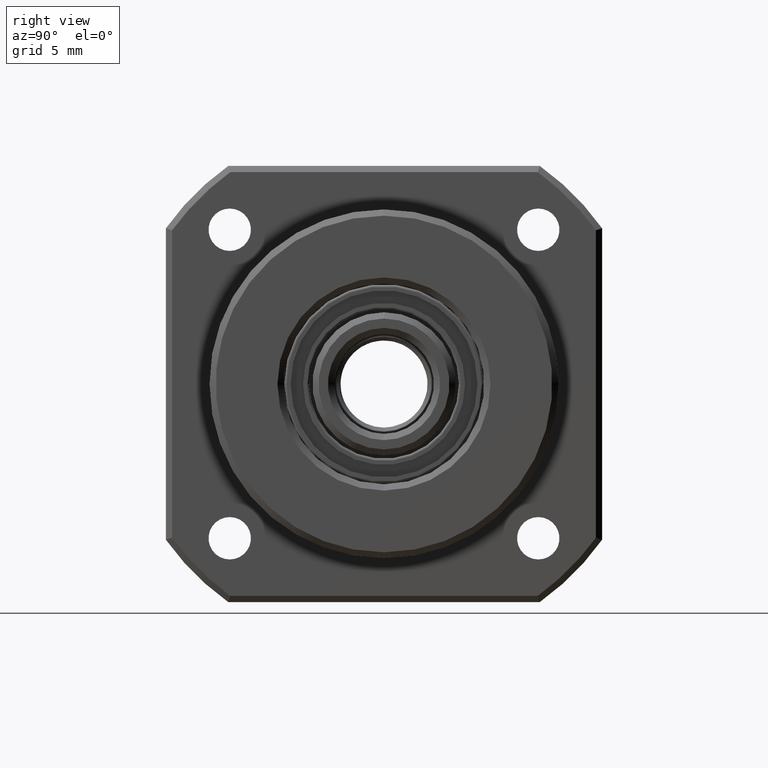
[diagram: clean part render]
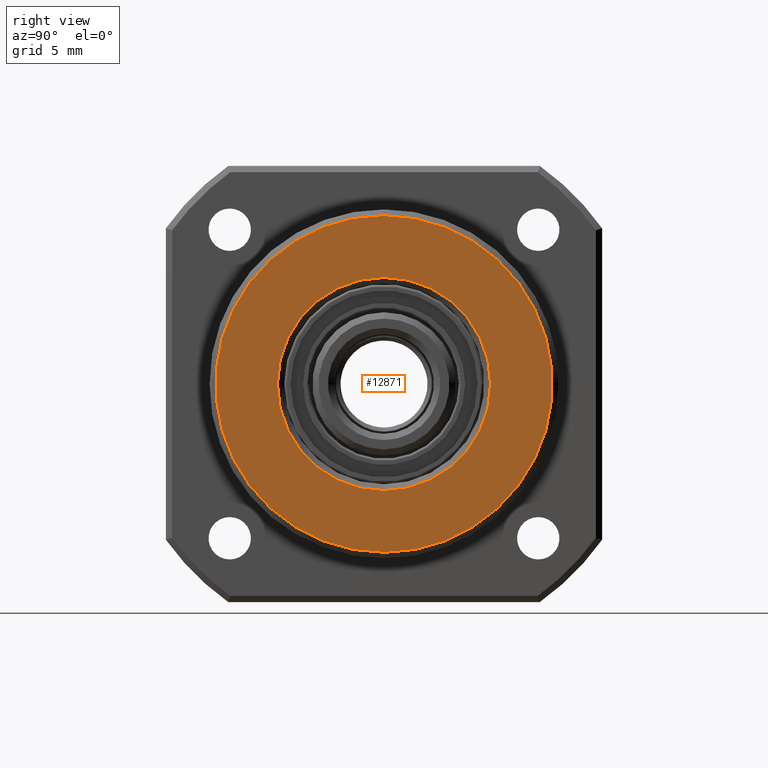
[diagram: same view with one face highlighted and labeled with its STEP entity id]
A machine part, right view. The second image highlights one B-rep face of the part: STEP entity #12871.
In plain terms, the highlighted planar face has unit normal (-1, 0, -0).
Its self-contained STEP definition (entity closure, byte-faithful):
#12435 = VERTEX_POINT ( 'NONE', #47726 ) ;
#12438 = EDGE_CURVE ( 'NONE', #12600, #12435, #47725, .T. ) ;
#12576 = EDGE_CURVE ( 'NONE', #12578, #12581, #48335, .T. ) ;
#12578 = VERTEX_POINT ( 'NONE', #48330 ) ;
#12581 = VERTEX_POINT ( 'NONE', #48329 ) ;
#12600 = VERTEX_POINT ( 'NONE', #48370 ) ;
#12871 = ADVANCED_FACE ( 'NONE', ( #48672, #48671 ), #48670, .F. ) ;
#12874 = EDGE_LOOP ( 'NONE', ( #12876, #12878 ) ) ;
#12876 = ORIENTED_EDGE ( 'NONE', *, *, #12438, .T. ) ;
#12878 = ORIENTED_EDGE ( 'NONE', *, *, #12880, .T. ) ;
#12880 = EDGE_CURVE ( 'NONE', #12435, #12600, #48668, .T. ) ;
#12883 = EDGE_LOOP ( 'NONE', ( #12885, #12889 ) ) ;
#12885 = ORIENTED_EDGE ( 'NONE', *, *, #12887, .T. ) ;
#12887 = EDGE_CURVE ( 'NONE', #12581, #12578, #48660, .T. ) ;
#12889 = ORIENTED_EDGE ( 'NONE', *, *, #12576, .T. ) ;
#47720 = DIRECTION ( 'NONE',  ( 0.0000000000000000000, 0.0000000000000000000, 1.000000000000000000 ) ) ;
#47721 = DIRECTION ( 'NONE',  ( -1.000000000000000000, -0.0000000000000000000, -0.0000000000000000000 ) ) ;
#47723 = CARTESIAN_POINT ( 'NONE',  ( 23.00000000000000000, 0.0000000000000000000, 0.0000000000000000000 ) ) ;
#47724 = AXIS2_PLACEMENT_3D ( 'NONE', #47723, #47721, #47720 ) ;
#47725 = CIRCLE ( 'NONE', #47724, 8.549999999999984700 ) ;
#47726 = CARTESIAN_POINT ( 'NONE',  ( 23.00000000000000000, 1.047038432518130600E-015, 8.549999999999984700 ) ) ;
#48329 = CARTESIAN_POINT ( 'NONE',  ( 23.00000000000000000, 0.0000000000000000000, 13.50000000000000200 ) ) ;
#48330 = CARTESIAN_POINT ( 'NONE',  ( 23.00000000000000000, 1.683833736505768900E-015, -13.50000000000000200 ) ) ;
#48331 = DIRECTION ( 'NONE',  ( 0.0000000000000000000, 0.0000000000000000000, 1.000000000000000000 ) ) ;
#48332 = DIRECTION ( 'NONE',  ( 1.000000000000000000, 0.0000000000000000000, 0.0000000000000000000 ) ) ;
#48333 = CARTESIAN_POINT ( 'NONE',  ( 23.00000000000000000, 0.0000000000000000000, 0.0000000000000000000 ) ) ;
#48334 = AXIS2_PLACEMENT_3D ( 'NONE', #48333, #48332, #48331 ) ;
#48335 = CIRCLE ( 'NONE', #48334, 13.50000000000000200 ) ;
#48370 = CARTESIAN_POINT ( 'NONE',  ( 23.00000000000000000, 0.0000000000000000000, -8.549999999999984700 ) ) ;
#48656 = DIRECTION ( 'NONE',  ( 0.0000000000000000000, 0.0000000000000000000, 1.000000000000000000 ) ) ;
#48657 = DIRECTION ( 'NONE',  ( 1.000000000000000000, 0.0000000000000000000, 0.0000000000000000000 ) ) ;
#48658 = CARTESIAN_POINT ( 'NONE',  ( 23.00000000000000000, 0.0000000000000000000, 0.0000000000000000000 ) ) ;
#48659 = AXIS2_PLACEMENT_3D ( 'NONE', #48658, #48657, #48656 ) ;
#48660 = CIRCLE ( 'NONE', #48659, 13.50000000000000200 ) ;
#48661 = DIRECTION ( 'NONE',  ( 0.0000000000000000000, 0.0000000000000000000, 1.000000000000000000 ) ) ;
#48662 = DIRECTION ( 'NONE',  ( -1.000000000000000000, -0.0000000000000000000, -0.0000000000000000000 ) ) ;
#48663 = CARTESIAN_POINT ( 'NONE',  ( 23.00000000000000000, 0.0000000000000000000, 0.0000000000000000000 ) ) ;
#48664 = AXIS2_PLACEMENT_3D ( 'NONE', #48663, #48662, #48661 ) ;
#48665 = DIRECTION ( 'NONE',  ( -0.0000000000000000000, 0.0000000000000000000, 1.000000000000000000 ) ) ;
#48666 = DIRECTION ( 'NONE',  ( -1.000000000000000000, 0.0000000000000000000, -0.0000000000000000000 ) ) ;
#48667 = AXIS2_PLACEMENT_3D ( 'NONE', #48669, #48666, #48665 ) ;
#48668 = CIRCLE ( 'NONE', #48664, 8.549999999999984700 ) ;
#48669 = CARTESIAN_POINT ( 'NONE',  ( 23.00000000000000000, 14.00000000000000200, 0.0000000000000000000 ) ) ;
#48670 = PLANE ( 'NONE',  #48667 ) ;
#48671 = FACE_OUTER_BOUND ( 'NONE', #12883, .T. ) ;
#48672 = FACE_BOUND ( 'NONE', #12874, .T. ) ;